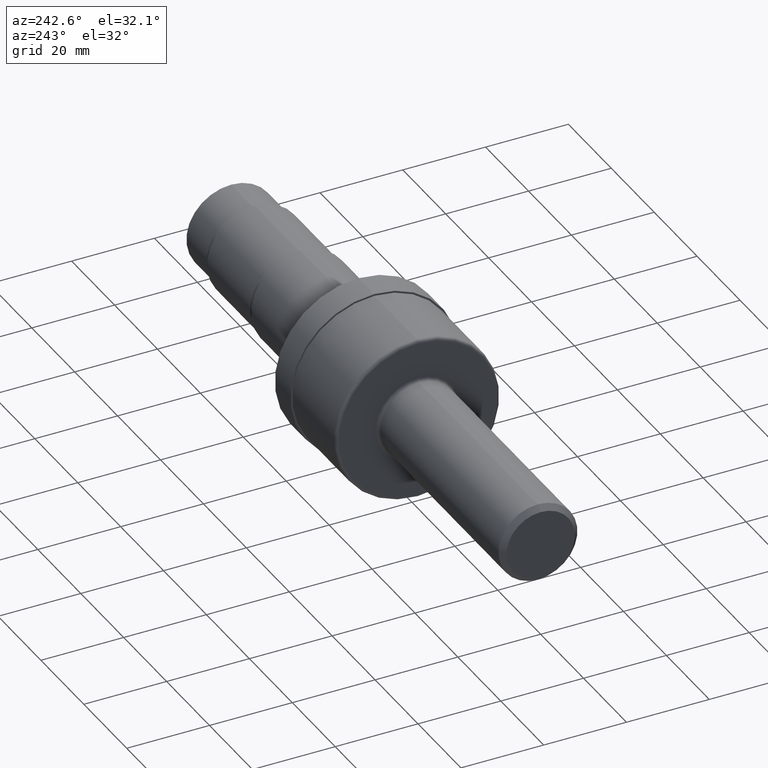
[diagram: clean part render]
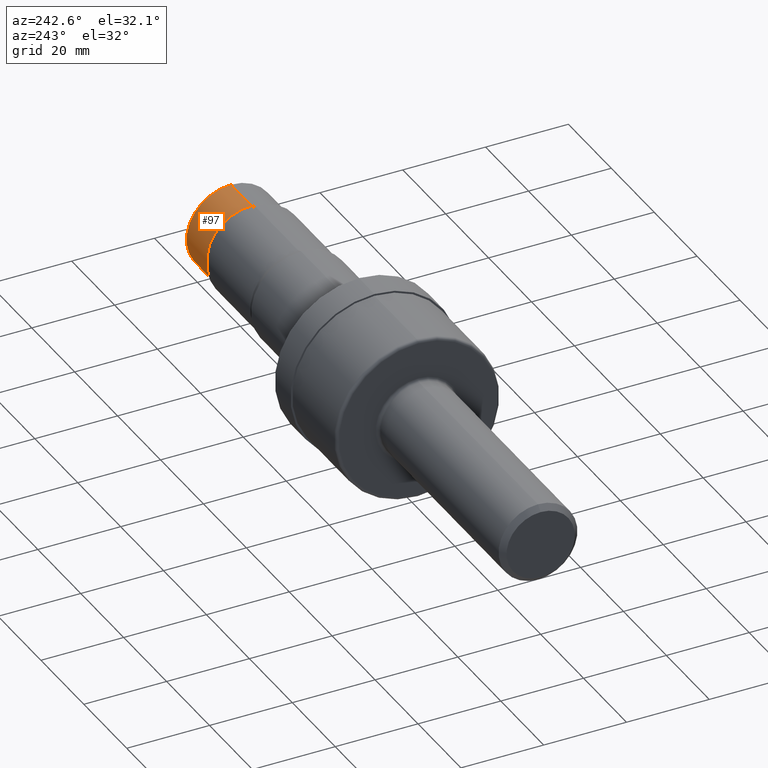
[diagram: same view with one face highlighted and labeled with its STEP entity id]
A machine part, auxiliary view. The second image highlights one B-rep face of the part: STEP entity #97.
In plain terms, the highlighted cylindrical surface (partial cylindrical patch) has radius 10.8052 mm, axis along (-1, -0, -0).
Its self-contained STEP definition (entity closure, byte-faithful):
#13 = CARTESIAN_POINT ( 'NONE',  ( 5.679999999999999716, 5.209647483572839855E-17, -0.4254000000000000004 ) ) ;
#56 = LINE ( 'NONE', #717, #818 ) ;
#88 = CARTESIAN_POINT ( 'NONE',  ( 0.0000000000000000000, 0.0000000000000000000, 0.4254000000000000004 ) ) ;
#97 = ADVANCED_FACE ( 'NONE', ( #723 ), #357, .T. ) ;
#98 = DIRECTION ( 'NONE',  ( -1.000000000000000000, -0.0000000000000000000, -0.0000000000000000000 ) ) ;
#101 = CARTESIAN_POINT ( 'NONE',  ( 0.0000000000000000000, 0.0000000000000000000, 0.0000000000000000000 ) ) ;
#116 = VERTEX_POINT ( 'NONE', #13 ) ;
#117 = VECTOR ( 'NONE', #972, 39.37007874015748143 ) ;
#138 = AXIS2_PLACEMENT_3D ( 'NONE', #101, #616, #467 ) ;
#173 = EDGE_LOOP ( 'NONE', ( #661, #854, #666, #490 ) ) ;
#244 = CARTESIAN_POINT ( 'NONE',  ( 5.303999999999998494, 5.209647483572840471E-17, -0.4254000000000000004 ) ) ;
#294 = AXIS2_PLACEMENT_3D ( 'NONE', #635, #747, #893 ) ;
#357 = CYLINDRICAL_SURFACE ( 'NONE', #138, 0.4254000000000000004 ) ;
#368 = EDGE_CURVE ( 'NONE', #116, #641, #56, .T. ) ;
#450 = VERTEX_POINT ( 'NONE', #748 ) ;
#467 = DIRECTION ( 'NONE',  ( 0.0000000000000000000, 0.0000000000000000000, 1.000000000000000000 ) ) ;
#490 = ORIENTED_EDGE ( 'NONE', *, *, #588, .F. ) ;
#509 = LINE ( 'NONE', #88, #117 ) ;
#528 = EDGE_CURVE ( 'NONE', #572, #116, #530, .T. ) ;
#530 = CIRCLE ( 'NONE', #767, 0.4254000000000000004 ) ;
#550 = CARTESIAN_POINT ( 'NONE',  ( 5.679999999999999716, 0.0000000000000000000, 0.0000000000000000000 ) ) ;
#572 = VERTEX_POINT ( 'NONE', #614 ) ;
#588 = EDGE_CURVE ( 'NONE', #572, #450, #509, .T. ) ;
#614 = CARTESIAN_POINT ( 'NONE',  ( 5.679999999999999716, 0.0000000000000000000, 0.4254000000000000004 ) ) ;
#616 = DIRECTION ( 'NONE',  ( -1.000000000000000000, -0.0000000000000000000, -0.0000000000000000000 ) ) ;
#635 = CARTESIAN_POINT ( 'NONE',  ( 5.303999999999998494, 0.0000000000000000000, 0.0000000000000000000 ) ) ;
#637 = DIRECTION ( 'NONE',  ( 0.0000000000000000000, 0.0000000000000000000, 1.000000000000000000 ) ) ;
#641 = VERTEX_POINT ( 'NONE', #244 ) ;
#661 = ORIENTED_EDGE ( 'NONE', *, *, #528, .T. ) ;
#666 = ORIENTED_EDGE ( 'NONE', *, *, #784, .F. ) ;
#717 = CARTESIAN_POINT ( 'NONE',  ( 0.0000000000000000000, 5.209647483572840471E-17, -0.4254000000000000004 ) ) ;
#723 = FACE_OUTER_BOUND ( 'NONE', #173, .T. ) ;
#747 = DIRECTION ( 'NONE',  ( -1.000000000000000000, -0.0000000000000000000, -0.0000000000000000000 ) ) ;
#748 = CARTESIAN_POINT ( 'NONE',  ( 5.303999999999998494, 0.0000000000000000000, 0.4254000000000000004 ) ) ;
#766 = CIRCLE ( 'NONE', #294, 0.4254000000000000004 ) ;
#767 = AXIS2_PLACEMENT_3D ( 'NONE', #550, #771, #637 ) ;
#771 = DIRECTION ( 'NONE',  ( -1.000000000000000000, -0.0000000000000000000, -0.0000000000000000000 ) ) ;
#784 = EDGE_CURVE ( 'NONE', #450, #641, #766, .T. ) ;
#818 = VECTOR ( 'NONE', #98, 39.37007874015748143 ) ;
#854 = ORIENTED_EDGE ( 'NONE', *, *, #368, .T. ) ;
#893 = DIRECTION ( 'NONE',  ( 0.0000000000000000000, 0.0000000000000000000, 1.000000000000000000 ) ) ;
#972 = DIRECTION ( 'NONE',  ( -1.000000000000000000, -0.0000000000000000000, -0.0000000000000000000 ) ) ;